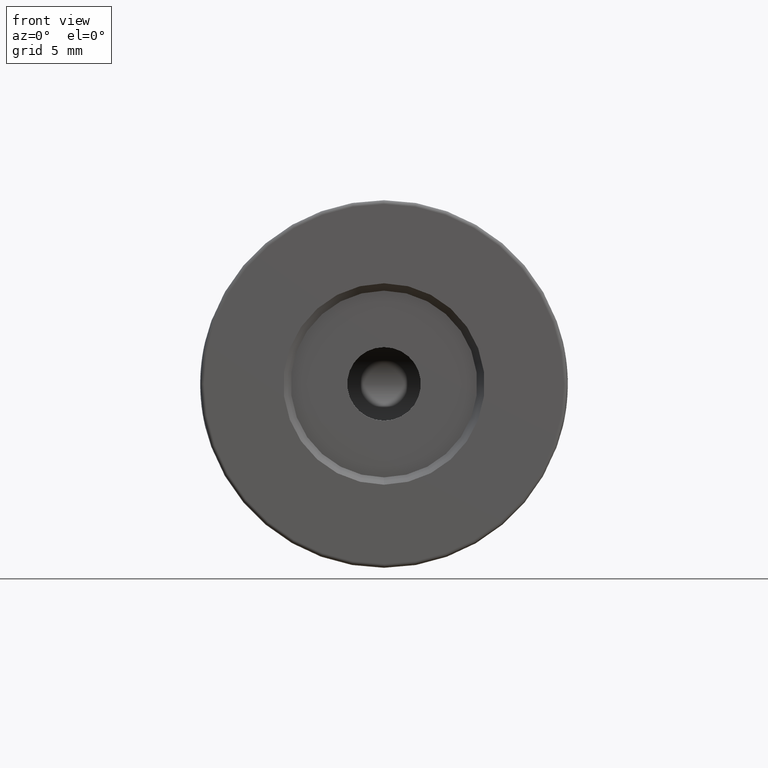
[diagram: clean part render]
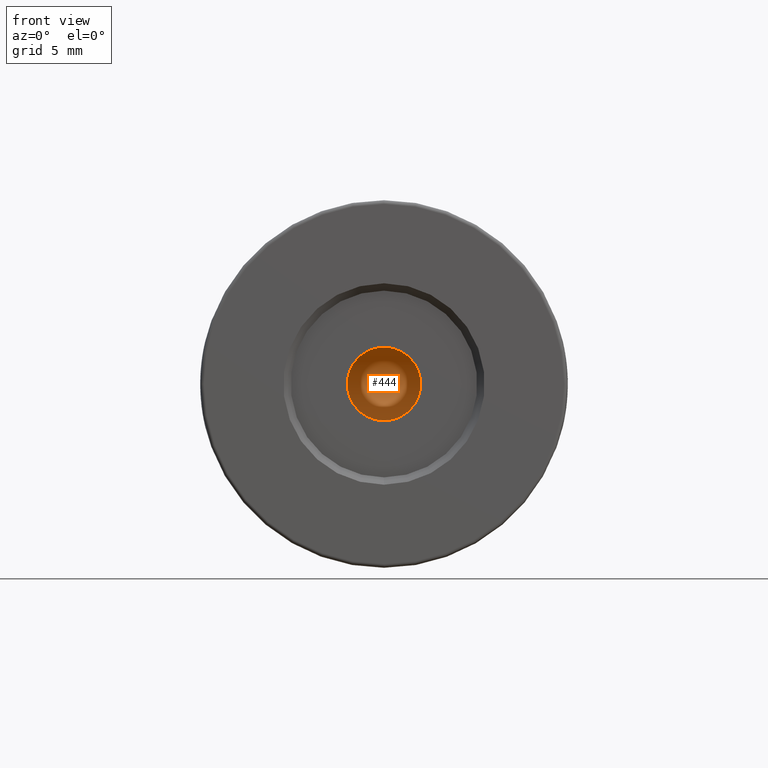
[diagram: same view with one face highlighted and labeled with its STEP entity id]
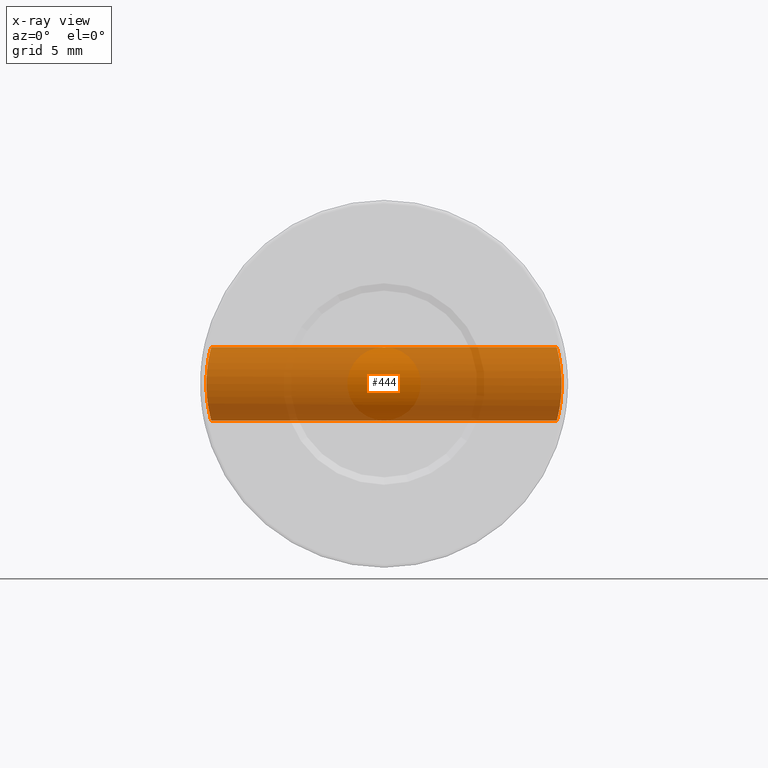
[diagram: x-ray of the same camera — body ghosted, the highlighted face saturated]
A machine part, front view. The second image highlights one B-rep face of the part: STEP entity #444.
The next image is the same camera in x-ray: the body ghosted, the highlighted face saturated — about 84% of this face is hidden behind the body in this view.
In plain terms, the highlighted cylindrical surface (partial cylindrical patch) has radius 2.5 mm, axis along (1, -0, -0).
Its self-contained STEP definition (entity closure, byte-faithful):
#1 = CARTESIAN_POINT ( 'NONE',  ( -10.62159523113176363, -0.1968808583162673653, 48.07498591642143282 ) ) ;
#2 = CARTESIAN_POINT ( 'NONE',  ( -34.46180608895006259, -0.5818729988150558308, 51.52640824506183037 ) ) ;
#18 = CARTESIAN_POINT ( 'NONE',  ( -10.67858783943564305, 0.1833180170229181116, 47.81497774255150546 ) ) ;
#19 = CARTESIAN_POINT ( 'NONE',  ( -34.48401816584312485, -0.6852538559191950762, 51.38169719037629335 ) ) ;
#38 = CARTESIAN_POINT ( 'NONE',  ( -10.64232181268587674, -0.06986180922436015239, 47.97637558953262271 ) ) ;
#39 = CARTESIAN_POINT ( 'NONE',  ( -34.50716656985768083, -0.7881284129226078239, 51.21293915897651772 ) ) ;
#56 = VERTEX_POINT ( 'NONE', #2630 ) ;
#58 = CARTESIAN_POINT ( 'NONE',  ( -34.55953902162276137, -1.005153659604419270, 50.68936837208522661 ) ) ;
#73 = CARTESIAN_POINT ( 'NONE',  ( -34.28602672658875150, 0.5950355728038800862, 52.37347955788921183 ) ) ;
#92 = CARTESIAN_POINT ( 'NONE',  ( -10.74274117493625091, 0.8684932594145711171, 52.44355759701232955 ) ) ;
#101 = CARTESIAN_POINT ( 'NONE',  ( -10.57773180386043066, -0.4376908258263546569, 48.30298648008197659 ) ) ;
#103 = VERTEX_POINT ( 'NONE', #1882 ) ;
#108 = CARTESIAN_POINT ( 'NONE',  ( -10.67397712752309857, 0.1479697807137531074, 52.16528279557555692 ) ) ;
#118 = CARTESIAN_POINT ( 'NONE',  ( -10.58234760790217877, -0.4137576542944788049, 48.27757271579589826 ) ) ;
#149 = ORIENTED_EDGE ( 'NONE', *, *, #2620, .T. ) ;
#173 = CARTESIAN_POINT ( 'NONE',  ( -10.62583528341421335, -0.1716875949890521169, 51.94559000068362309 ) ) ;
#174 = CARTESIAN_POINT ( 'NONE',  ( -34.45088966696442156, -0.5289798279518589386, 48.40758319721046377 ) ) ;
#182 = EDGE_CURVE ( 'NONE', #1409, #2243, #551, .T. ) ;
#190 = CARTESIAN_POINT ( 'NONE',  ( -10.42604825907036137, -1.101714980132666444, 49.91792093702063227 ) ) ;
#191 = CARTESIAN_POINT ( 'NONE',  ( -34.42649553502507587, -0.4059594383566594855, 48.26863308257303231 ) ) ;
#207 = CARTESIAN_POINT ( 'NONE',  ( -10.56031926645037622, -0.5250308565864675314, 51.59718396470118051 ) ) ;
#208 = CARTESIAN_POINT ( 'NONE',  ( -34.53415704703492395, -0.9023810259828971558, 49.02146608222509627 ) ) ;
#225 = CARTESIAN_POINT ( 'NONE',  ( -10.49456390203182110, -0.8254235332937839287, 48.85732724738778643 ) ) ;
#226 = CARTESIAN_POINT ( 'NONE',  ( -34.41225743643844481, -0.3296779907819702427, 48.19311185141841491 ) ) ;
#245 = CARTESIAN_POINT ( 'NONE',  ( -10.50331884686101169, -0.7877254888209659356, 51.21321714994044783 ) ) ;
#246 = CARTESIAN_POINT ( 'NONE',  ( -34.53237663778121913, -0.8950104628119405215, 49.00433359288258828 ) ) ;
#263 = CARTESIAN_POINT ( 'NONE',  ( -10.54864018140512272, -0.5816680154573729000, 48.47333049443028585 ) ) ;
#264 = CARTESIAN_POINT ( 'NONE',  ( -34.39865427624107497, -0.2538691972577701295, 51.87630079081840506 ) ) ;
#280 = CARTESIAN_POINT ( 'NONE',  ( -10.71610056787917564, 0.5169422706546876745, 47.66013366162549403 ) ) ;
#281 = CARTESIAN_POINT ( 'NONE',  ( -34.45235365778886916, -0.5361417108541568499, 51.58370875816678591 ) ) ;
#300 = CARTESIAN_POINT ( 'NONE',  ( -10.52659986134875147, -0.6842789163474527481, 48.61683424880515503 ) ) ;
#301 = CARTESIAN_POINT ( 'NONE',  ( -34.35844637509133292, -0.006921562649152083677, 52.06774620977071777 ) ) ;
#320 = CARTESIAN_POINT ( 'NONE',  ( -10.55563654013720587, -0.5478977700872590395, 48.43075464459153778 ) ) ;
#321 = CARTESIAN_POINT ( 'NONE',  ( -34.33170421931531990, 0.1841765981154536158, 52.18549987223105546 ) ) ;
#338 = CARTESIAN_POINT ( 'NONE',  ( -34.56758620653591407, -1.036867936829209746, 50.56735310513084158 ) ) ;
#383 = CARTESIAN_POINT ( 'NONE',  ( -10.60970156000155917, -0.2654886933591443787, 48.13398014680061721 ) ) ;
#389 = CARTESIAN_POINT ( 'NONE',  ( -10.63294623930574900, -0.1287006704112836353, 51.97970505910436856 ) ) ;
#409 = CARTESIAN_POINT ( 'NONE',  ( -10.72622720231127325, 0.6314631381762972895, 52.37983731697176637 ) ) ;
#410 = CARTESIAN_POINT ( 'NONE',  ( -34.25265048614458152, 1.317191779406497121, 47.50000000000000000 ) ) ;
#427 = CARTESIAN_POINT ( 'NONE',  ( -10.71592032879144796, 0.5156644170198241284, 52.33911789078246812 ) ) ;
#442 = CARTESIAN_POINT ( 'NONE',  ( -34.36065912378236931, -0.02189760885076475275, 47.94221740962712630 ) ) ;
#444 = ADVANCED_FACE ( 'NONE', ( #3322 ), #1985, .F. ) ;
#456 = CARTESIAN_POINT ( 'NONE',  ( -10.43018898294854147, -1.086043810321795089, 50.32543852508524651 ) ) ;
#457 = CARTESIAN_POINT ( 'NONE',  ( -34.56747093977340057, -1.036417866412739919, 49.43074854711915833 ) ) ;
#474 = CARTESIAN_POINT ( 'NONE',  ( -10.42710243056527375, -1.097735351428669182, 49.83632547966586657 ) ) ;
#475 = CARTESIAN_POINT ( 'NONE',  ( -34.51574154471718714, -0.8250691337413179616, 48.85603395560453066 ) ) ;
#490 = CARTESIAN_POINT ( 'NONE',  ( -10.48373458051032792, -0.8713286182909774080, 48.95026334256161960 ) ) ;
#491 = CARTESIAN_POINT ( 'NONE',  ( -34.38650796547503319, -0.1832489827854534847, 48.06380219130608822 ) ) ;
#499 = ORIENTED_EDGE ( 'NONE', *, *, #2661, .T. ) ;
#510 = CARTESIAN_POINT ( 'NONE',  ( -10.47238800387144408, -0.9182809379658727345, 49.05975502743002892 ) ) ;
#511 = CARTESIAN_POINT ( 'NONE',  ( -34.50233437376970613, -0.7670108864525113646, 48.75018965329959286 ) ) ;
#529 = CARTESIAN_POINT ( 'NONE',  ( -10.55249967033364378, -0.5632656986772527352, 51.55062747424837966 ) ) ;
#530 = CARTESIAN_POINT ( 'NONE',  ( -34.51348870992945450, -0.8153565648238506602, 51.16202697217401862 ) ) ;
#546 = CARTESIAN_POINT ( 'NONE',  ( -10.55800996917534462, -0.5363372430205892716, 48.41653009995997081 ) ) ;
#547 = CARTESIAN_POINT ( 'NONE',  ( -34.54002586174048162, -0.9265255133415598587, 50.91969437421626310 ) ) ;
#551 = LINE ( 'NONE', #2958, #3454 ) ;
#565 = CARTESIAN_POINT ( 'NONE',  ( -10.53696138725975828, -0.6367714060218671035, 48.54730203812864886 ) ) ;
#566 = CARTESIAN_POINT ( 'NONE',  ( -34.36433900642598616, -0.04581549949828397222, 52.04091040488672348 ) ) ;
#570 = DIRECTION ( 'NONE',  ( 1.000000000000000000, -0.0000000000000000000, -0.0000000000000000000 ) ) ;
#584 = CARTESIAN_POINT ( 'NONE',  ( -10.69439968394438800, 0.3107931542056360241, 47.74825504812926624 ) ) ;
#585 = CARTESIAN_POINT ( 'NONE',  ( -34.35081851356338234, 0.04444782519338460330, 52.10216400116996738 ) ) ;
#587 = EDGE_CURVE ( 'NONE', #103, #2823, #1201, .T. ) ;
#594 = CARTESIAN_POINT ( 'NONE',  ( -34.25372608117672257, 1.235573217407851976, 47.50394556698368120 ) ) ;
#602 = CARTESIAN_POINT ( 'NONE',  ( -34.45689946489310529, -0.5582448629675769158, 51.55638464945538146 ) ) ;
#610 = CARTESIAN_POINT ( 'NONE',  ( -34.30563352355968476, 0.4043161048834505999, 47.70574000960827732 ) ) ;
#621 = B_SPLINE_CURVE_WITH_KNOTS ( 'NONE', 3,
 ( #709, #2833, #1199, #2554, #1968, #3022, #2797, #92, #2815, #637, #3076, #409, #2504, #427, #2002, #1216, #1480, #1498, #3355, #3056, #2232, #2537, #108, #1461, #1704, #3039, #3338, #1183, #1984, #656, #1722, #389, #1558, #173, #1249, #724, #793, #2332, #1807, #2349, #755, #1790, #1527, #1058, #740, #1859, #2865, #1040, #207, #2916, #3386, #529, #2314, #2124, #3156, #2586, #2571, #775, #3403, #3369, #3177, #987, #245, #3441, #1843, #3422, #1319, #2053, #2847, #3108, #2106, #456, #2899, #190, #474, #1543, #2882, #1264, #2604, #1006, #1822, #2071, #1022, #3124, #2384, #1283, #2086, #510, #3139, #490, #2621, #225, #1300, #2364, #1577, #2638, #1977, #3296, #2140, #300, #1338, #565, #2655, #263, #3050, #320, #2514, #546, #2178, #1895, #1630, #101, #118, #930, #1995, #912, #1595, #850, #383, #1375, #1876, #1714, #1193, #2436, #2400, #2952, #1, #2691, #1074, #38, #2971, #3194, #2417, #1915, #1612, #2710, #813, #2259, #18, #1114, #3232, #584, #1651, #2934, #2673, #1454, #280, #2772, #1354, #649, #1092, #2158, #1175, #1394, #3212, #832 ),
 .UNSPECIFIED., .F., .F.,
 ( 4, 2, 2, 2, 2, 2, 1, 2, 2, 1, 2, 2, 2, 1, 2, 2, 2, 1, 1, 2, 2, 2, 2, 2, 2, 2, 1, 2, 2, 2, 1, 2, 2, 2, 2, 2, 1, 2, 2, 2, 2, 2, 2, 2, 2, 2, 1, 2, 2, 1, 2, 2, 2, 1, 2, 2, 2, 1, 1, 2, 2, 2, 2, 2, 2, 2, 2, 2, 1, 2, 2, 2, 1, 2, 2, 2, 2, 2, 1, 2, 2, 2, 2, 2, 2, 4 ),
 ( 0.5001617398552814509, 0.5157816854848015220, 0.5235916582995615576, 0.5314016311143215932, 0.5392116039290816287, 0.5470215767438416643, 0.5548315495586016999, 0.5587365359659817177, 0.5626415223733618465, 0.5704514951881224372, 0.5743564815955026770, 0.5782614680028830279, 0.5860714408176437296, 0.5899764272250239694, 0.5919289204287144779, 0.5938814136324049864, 0.6016913864471662432, 0.6055963728545472602, 0.6075488660582377687, 0.6085251126600833560, 0.6095013592619289433, 0.6173113320766927536, 0.6212163184840746588, 0.6251213048914565640, 0.6329312777062211515, 0.6368362641136029456, 0.6387887573172933431, 0.6397650039191384863, 0.6407412505209837406, 0.6485512233357457745, 0.6524562097431263474, 0.6544087029468166339, 0.6563611961505068093, 0.6641711689652678441, 0.6680761553726488611, 0.6719811417800299891, 0.6797911145947910239, 0.6836961010021708196, 0.6876010874095508374, 0.7188409786685852065, 0.7500808699276197977, 0.7657008155571369823, 0.7735107883718956856, 0.7813207611866543889, 0.7891307340014130922, 0.7969407068161715735, 0.8047506796309302768, 0.8086556660383095174, 0.8125606524456888691, 0.8203706252604487936, 0.8242756116678287004, 0.8281805980752086072, 0.8359905708899670884, 0.8398955572973464401, 0.8418480505010361714, 0.8438005437047257917, 0.8516105165194856053, 0.8555155029268657341, 0.8574679961305561315, 0.8584442427324014968, 0.8594204893342466400, 0.8672304621490041221, 0.8711354485563829186, 0.8730879417600723169, 0.8750404349637617152, 0.8828504077785199744, 0.8848029009822102608, 0.8857791475840555151, 0.8867553941859006583, 0.8887078873895917219, 0.8906603805932830076, 0.8984703534080493714, 0.9023753398154324978, 0.9043278330191240055, 0.9062803262228156242, 0.9140902990375818771, 0.9179952854449651145, 0.9219002718523481299, 0.9297102446671139386, 0.9336152310744965099, 0.9375202174818789702, 0.9453301902966441128, 0.9531401631114091444, 0.9609501359261742870, 0.9687601087409394296, 1.000000000000000000 ),
 .UNSPECIFIED. ) ;
#637 = CARTESIAN_POINT ( 'NONE',  ( -10.73519474087071224, 0.7493470907608199560, 52.41466407441102859 ) ) ;
#638 = DIRECTION ( 'NONE',  ( 0.0000000000000000000, 0.0000000000000000000, -1.000000000000000000 ) ) ;
#649 = CARTESIAN_POINT ( 'NONE',  ( -10.73240326151844570, 0.7104556607155707582, 47.59611550456553175 ) ) ;
#656 = CARTESIAN_POINT ( 'NONE',  ( -10.64475702032164683, -0.05449199713574787857, 52.03499243849228861 ) ) ;
#691 = CARTESIAN_POINT ( 'NONE',  ( -34.29800687137930026, 0.4791906237897281540, 47.67497262554034165 ) ) ;
#692 = CARTESIAN_POINT ( 'NONE',  ( -35.00520183104453764, 1.398252184769388506, 50.00000000000000000 ) ) ;
#709 = CARTESIAN_POINT ( 'NONE',  ( -10.75775312123388971, 1.398252184769395834, 52.49999999860907707 ) ) ;
#710 = CARTESIAN_POINT ( 'NONE',  ( -34.47086386077138087, -0.6246421137252532452, 48.53088012368283444 ) ) ;
#724 = CARTESIAN_POINT ( 'NONE',  ( -10.62344330914431012, -0.1859351135221645468, 51.93400119752804756 ) ) ;
#725 = CARTESIAN_POINT ( 'NONE',  ( -34.58332565315850360, -1.097829955506911759, 50.16206928806301590 ) ) ;
#740 = CARTESIAN_POINT ( 'NONE',  ( -10.56932247538671454, -0.4803972759497946443, 51.64957173094261833 ) ) ;
#741 = CARTESIAN_POINT ( 'NONE',  ( -34.44330006835453872, -0.4914919942546380760, 48.36318210990521038 ) ) ;
#755 = CARTESIAN_POINT ( 'NONE',  ( -10.59768553201881147, -0.3321902539839899360, 51.80448705950021093 ) ) ;
#756 = CARTESIAN_POINT ( 'NONE',  ( -34.48044836708265848, -0.6689643209632546439, 48.59404682438723455 ) ) ;
#775 = CARTESIAN_POINT ( 'NONE',  ( -10.52885508855513663, -0.6739989469219954676, 51.39853227016924109 ) ) ;
#776 = CARTESIAN_POINT ( 'NONE',  ( -34.57917339465431894, -1.081894588688637970, 50.32490689011670071 ) ) ;
#793 = CARTESIAN_POINT ( 'NONE',  ( -10.61972372439687362, -0.2079601786138379482, 51.91591326594845413 ) ) ;
#794 = CARTESIAN_POINT ( 'NONE',  ( -34.49555993423459199, -0.7371358814296029571, 51.30020623651645906 ) ) ;
#813 = CARTESIAN_POINT ( 'NONE',  ( -10.67175156277595072, 0.1317791047682938255, 47.84443531904258862 ) ) ;
#814 = CARTESIAN_POINT ( 'NONE',  ( -34.47841176954435838, -0.6597039480360201713, 51.41991877060663541 ) ) ;
#832 = CARTESIAN_POINT ( 'NONE',  ( -10.75775311712864735, 1.398252184769388506, 47.50000000000000000 ) ) ;
#833 = CARTESIAN_POINT ( 'NONE',  ( -34.57597065877341436, -1.069532232669696326, 50.40818179678795730 ) ) ;
#850 = CARTESIAN_POINT ( 'NONE',  ( -10.60442211734673457, -0.2952135887468981257, 48.16065378262511132 ) ) ;
#851 = CARTESIAN_POINT ( 'NONE',  ( -34.33622545324850250, 0.1498362926352976021, 52.16606716929506860 ) ) ;
#860 = CARTESIAN_POINT ( 'NONE',  ( -34.25265054498070327, 1.398252184769378959, 47.49999999999540989 ) ) ;
#866 = VECTOR ( 'NONE', #2762, 1000.000000000000000 ) ;
#870 = CARTESIAN_POINT ( 'NONE',  ( -34.31595423361484620, 0.3112339593927870851, 52.25194986132313346 ) ) ;
#886 = CARTESIAN_POINT ( 'NONE',  ( -34.27403437959145549, 0.7470135017642817177, 52.41939231723549852 ) ) ;
#912 = CARTESIAN_POINT ( 'NONE',  ( -10.58870654711280501, -0.3803608510138715704, 48.24308501951851724 ) ) ;
#919 = CARTESIAN_POINT ( 'NONE',  ( -10.75775312123388971, 1.398252184769395834, 52.49999999860907707 ) ) ;
#930 = CARTESIAN_POINT ( 'NONE',  ( -10.58393590299981568, -0.4054708077846081449, 48.26889160422712877 ) ) ;
#957 = CARTESIAN_POINT ( 'NONE',  ( -34.26763340207761388, 0.8690186579489039831, 47.55632946927438098 ) ) ;
#971 = CARTESIAN_POINT ( 'NONE',  ( -34.25265054498070327, 1.398252184769378959, 47.49999999999540989 ) ) ;
#987 = CARTESIAN_POINT ( 'NONE',  ( -10.50780244122388929, -0.7681796818577127928, 51.24778492121350126 ) ) ;
#988 = CARTESIAN_POINT ( 'NONE',  ( -34.58436371778456220, -1.101747815230613714, 49.83753810370577497 ) ) ;
#1006 = CARTESIAN_POINT ( 'NONE',  ( -10.44066708810784405, -1.045268519329392465, 49.47006957765543689 ) ) ;
#1007 = CARTESIAN_POINT ( 'NONE',  ( -34.35511391788870128, 0.01548280108123433613, 47.91720626426130991 ) ) ;
#1022 = CARTESIAN_POINT ( 'NONE',  ( -10.45095694804015096, -1.004789451108452747, 49.30937450547701673 ) ) ;
#1023 = CARTESIAN_POINT ( 'NONE',  ( -34.48138769154141414, -0.6732635636608648166, 48.60037921174513542 ) ) ;
#1040 = CARTESIAN_POINT ( 'NONE',  ( -10.56183111278837217, -0.5176069660078431722, 51.60611082409621986 ) ) ;
#1041 = CARTESIAN_POINT ( 'NONE',  ( -34.34705827748303619, 0.07100138798370368709, 47.88122892111255879 ) ) ;
#1058 = CARTESIAN_POINT ( 'NONE',  ( -10.57732511995014946, -0.4399142557310912194, 51.69492976378364801 ) ) ;
#1059 = CARTESIAN_POINT ( 'NONE',  ( -34.40082131574115465, -0.2661626669478704965, 51.86541833316356076 ) ) ;
#1074 = CARTESIAN_POINT ( 'NONE',  ( -10.63454691679634578, -0.1190031699292755096, 48.01264145040787668 ) ) ;
#1075 = CARTESIAN_POINT ( 'NONE',  ( -34.51594362384955872, -0.8258666276651617233, 51.14180818670956086 ) ) ;
#1092 = CARTESIAN_POINT ( 'NONE',  ( -10.73524935634624455, 0.7501397676350676225, 47.58512630799970822 ) ) ;
#1093 = CARTESIAN_POINT ( 'NONE',  ( -34.48550909626646188, -0.6920244124106107453, 51.37144371164546186 ) ) ;
#1114 = CARTESIAN_POINT ( 'NONE',  ( -10.68052348044563082, 0.1982792118610490761, 47.80671014584392253 ) ) ;
#1115 = CARTESIAN_POINT ( 'NONE',  ( -34.52032622242564486, -0.8445100356048756973, 51.10473890577102196 ) ) ;
#1132 = CARTESIAN_POINT ( 'NONE',  ( -34.32265489828677119, 0.2554984144396964529, 52.22394071949661765 ) ) ;
#1148 = CARTESIAN_POINT ( 'NONE',  ( -34.25692942768890958, 1.072705232127493025, 52.48426854195874824 ) ) ;
#1175 = CARTESIAN_POINT ( 'NONE',  ( -10.74267190343696043, 0.8671768546495380869, 47.55670384601889822 ) ) ;
#1183 = CARTESIAN_POINT ( 'NONE',  ( -10.65514354455450885, 0.01449203186619087667, 52.08213575337613577 ) ) ;
#1193 = CARTESIAN_POINT ( 'NONE',  ( -10.61375476849908317, -0.2424175756126970005, 48.11367224359497641 ) ) ;
#1199 = CARTESIAN_POINT ( 'NONE',  ( -10.75667521398798065, 1.235421006823659296, 52.49604762626784549 ) ) ;
#1200 = CARTESIAN_POINT ( 'NONE',  ( -34.28408417306183509, 0.6325990093843253392, 47.61980232292838622 ) ) ;
#1201 = LINE ( 'NONE', #2779, #866 ) ;
#1216 = CARTESIAN_POINT ( 'NONE',  ( -10.71009666006385430, 0.4561568447529769088, 52.31578128150203355 ) ) ;
#1217 = CARTESIAN_POINT ( 'NONE',  ( -34.26348267496746303, 0.9478053007554890774, 47.54058718525541849 ) ) ;
#1249 = CARTESIAN_POINT ( 'NONE',  ( -10.62437748581633379, -0.1803884314582000492, 51.93853686259114966 ) ) ;
#1250 = CARTESIAN_POINT ( 'NONE',  ( -34.44080632493822236, -0.4790193692568095463, 48.34885748903716518 ) ) ;
#1264 = CARTESIAN_POINT ( 'NONE',  ( -10.43471003864932989, -1.068430130424115942, 49.59111660102172436 ) ) ;
#1265 = CARTESIAN_POINT ( 'NONE',  ( -34.33611078084065582, 0.1503272233652955536, 47.83335261608824851 ) ) ;
#1283 = CARTESIAN_POINT ( 'NONE',  ( -10.46675418761888210, -0.9413161042137381251, 49.11861145019425834 ) ) ;
#1284 = CARTESIAN_POINT ( 'NONE',  ( -34.54002772576265556, -0.9265728093634830742, 49.07969790760635220 ) ) ;
#1300 = CARTESIAN_POINT ( 'NONE',  ( -10.49703592662607221, -0.8148377673072904059, 48.83698465690869739 ) ) ;
#1301 = CARTESIAN_POINT ( 'NONE',  ( -34.48795404596005909, -0.7031998793840928963, 48.64510045663127613 ) ) ;
#1319 = CARTESIAN_POINT ( 'NONE',  ( -10.48170455071265472, -0.8797127351580459331, 51.03018400398766374 ) ) ;
#1320 = CARTESIAN_POINT ( 'NONE',  ( -34.44989863870507918, -0.5241191198567732856, 48.40171871317532748 ) ) ;
#1338 = CARTESIAN_POINT ( 'NONE',  ( -10.53216740897180692, -0.6588951868629280284, 48.57891688851639600 ) ) ;
#1339 = CARTESIAN_POINT ( 'NONE',  ( -34.56987545375614701, -1.045809881134129427, 50.52745018301020252 ) ) ;
#1354 = CARTESIAN_POINT ( 'NONE',  ( -10.72619458734259013, 0.6309908818969653943, 47.62028682001269431 ) ) ;
#1355 = CARTESIAN_POINT ( 'NONE',  ( -34.43263066567408259, -0.4374791448352107759, 51.69724255881399699 ) ) ;
#1375 = CARTESIAN_POINT ( 'NONE',  ( -10.61064650972083001, -0.2601381413485561733, 48.12922970440698123 ) ) ;
#1376 = CARTESIAN_POINT ( 'NONE',  ( -34.42163468960241346, -0.3800297845475701930, 51.75724919839603189 ) ) ;
#1388 = CARTESIAN_POINT ( 'NONE',  ( -10.75775311712864735, 1.398252184769388506, 47.50000000000000000 ) ) ;
#1394 = CARTESIAN_POINT ( 'NONE',  ( -10.75344419893102632, 1.071524213025596639, 47.51584169795628299 ) ) ;
#1395 = CARTESIAN_POINT ( 'NONE',  ( -34.39988808703810719, -0.2608806378411337445, 51.87011153443979339 ) ) ;
#1403 = CARTESIAN_POINT ( 'NONE',  ( -34.25695295455719958, 1.112906428231886347, 47.51599801852401583 ) ) ;
#1409 = VERTEX_POINT ( 'NONE', #971 ) ;
#1411 = CARTESIAN_POINT ( 'NONE',  ( -34.43550956289714549, -0.4522026044746847995, 51.68113994059915939 ) ) ;
#1454 = CARTESIAN_POINT ( 'NONE',  ( -10.71235439384134480, 0.4781380950031267618, 47.67509863884822607 ) ) ;
#1461 = CARTESIAN_POINT ( 'NONE',  ( -10.66678853302373398, 0.09561727201219219485, 52.13390632473469566 ) ) ;
#1480 = CARTESIAN_POINT ( 'NONE',  ( -10.70449112277458248, 0.4016970245442622600, 52.29312540136203324 ) ) ;
#1498 = CARTESIAN_POINT ( 'NONE',  ( -10.69849887821412260, 0.3465721218100823453, 52.26868595215763946 ) ) ;
#1514 = CARTESIAN_POINT ( 'NONE',  ( -34.37321774597252499, -0.1023266511175646432, 48.00033112858268680 ) ) ;
#1527 = CARTESIAN_POINT ( 'NONE',  ( -10.58346237395098477, -0.4082778326454583606, 51.72892613121193506 ) ) ;
#1528 = CARTESIAN_POINT ( 'NONE',  ( -34.52845201512801765, -0.8786810074041245811, 48.96753673022602271 ) ) ;
#1543 = CARTESIAN_POINT ( 'NONE',  ( -10.43025254437209703, -1.085644778690259660, 49.71374546766625713 ) ) ;
#1544 = CARTESIAN_POINT ( 'NONE',  ( -34.52237776065797448, -0.8532812732193804095, 48.91209882768374939 ) ) ;
#1558 = CARTESIAN_POINT ( 'NONE',  ( -10.62800475089833263, -0.1586852750479571805, 51.95605736551608800 ) ) ;
#1559 = CARTESIAN_POINT ( 'NONE',  ( -34.55357667332192761, -0.9813988309537613475, 49.23254846258252115 ) ) ;
#1574 = CARTESIAN_POINT ( 'NONE',  ( -34.25265217549185337, 1.236269165593523178, 52.50000000000000711 ) ) ;
#1577 = CARTESIAN_POINT ( 'NONE',  ( -10.50786879652206984, -0.7679670883880344023, 48.75133047365985561 ) ) ;
#1578 = CARTESIAN_POINT ( 'NONE',  ( -34.38577565378218281, -0.1788920693370853188, 48.06025158870866676 ) ) ;
#1595 = CARTESIAN_POINT ( 'NONE',  ( -10.59842354223565764, -0.3285848295785773754, 48.19128023147527529 ) ) ;
#1596 = CARTESIAN_POINT ( 'NONE',  ( -34.41198757836093591, -0.3286182131961329356, 51.80867430766598858 ) ) ;
#1612 = CARTESIAN_POINT ( 'NONE',  ( -10.65951608119999072, 0.04397262650258525890, 47.89814453424574481 ) ) ;
#1613 = CARTESIAN_POINT ( 'NONE',  ( -34.47358128225556584, -0.6374202605787688825, 51.45179814202610658 ) ) ;
#1630 = CARTESIAN_POINT ( 'NONE',  ( -10.57485337616749810, -0.4524102370142228935, 48.31908865571285361 ) ) ;
#1631 = CARTESIAN_POINT ( 'NONE',  ( -34.36077538717432134, -0.02236865110985488195, 52.05716408901214010 ) ) ;
#1651 = CARTESIAN_POINT ( 'NONE',  ( -10.70057055069113616, 0.3661159422536898189, 47.72291907336315120 ) ) ;
#1652 = CARTESIAN_POINT ( 'NONE',  ( -34.39003097981775170, -0.2040613252166126046, 51.91903397197344106 ) ) ;
#1668 = CARTESIAN_POINT ( 'NONE',  ( -34.42314861018284944, -0.3880299837861833634, 51.74909947996737714 ) ) ;
#1677 = CARTESIAN_POINT ( 'NONE',  ( -34.31159673122395759, 0.3493163015143447292, 47.73004764885509132 ) ) ;
#1704 = CARTESIAN_POINT ( 'NONE',  ( -10.66309147314571426, 0.06921372925078417282, 52.11764764604753708 ) ) ;
#1714 = CARTESIAN_POINT ( 'NONE',  ( -10.61231992382937506, -0.2506214636249038397, 48.12083918760337298 ) ) ;
#1722 = CARTESIAN_POINT ( 'NONE',  ( -10.63697505384543618, -0.1036455912773760757, 51.99867907403884004 ) ) ;
#1760 = CARTESIAN_POINT ( 'NONE',  ( -34.32262663300149086, 0.2561880020948804071, 47.77601120064381490 ) ) ;
#1776 = CARTESIAN_POINT ( 'NONE',  ( -34.33157020776420154, 0.1848587071711889351, 47.81387465578455931 ) ) ;
#1790 = CARTESIAN_POINT ( 'NONE',  ( -10.59387149139005757, -0.3528523106184301983, 51.78446549812111499 ) ) ;
#1791 = CARTESIAN_POINT ( 'NONE',  ( -34.34333947315268176, 0.09759829470787059758, 47.86488434572161310 ) ) ;
#1807 = CARTESIAN_POINT ( 'NONE',  ( -10.60718500976704171, -0.2796514536796509964, 51.85339265559438360 ) ) ;
#1808 = CARTESIAN_POINT ( 'NONE',  ( -34.45111437474876936, -0.5300818197651804287, 48.40891250346156482 ) ) ;
#1822 = CARTESIAN_POINT ( 'NONE',  ( -10.44294982557472196, -1.036351153594448515, 49.43045362237479878 ) ) ;
#1823 = CARTESIAN_POINT ( 'NONE',  ( -34.50003614695346954, -0.7569234433312890253, 48.73286471900372874 ) ) ;
#1843 = CARTESIAN_POINT ( 'NONE',  ( -10.49436252010375448, -0.8263483254533307010, 51.14147247849709288 ) ) ;
#1844 = CARTESIAN_POINT ( 'NONE',  ( -34.47459360791594207, -0.6420274704839967761, 48.55504079422336616 ) ) ;
#1859 = CARTESIAN_POINT ( 'NONE',  ( -10.56685546660520814, -0.4927281287576286695, 51.63538786508971157 ) ) ;
#1860 = CARTESIAN_POINT ( 'NONE',  ( -34.42642532567511893, -0.4052489239106836227, 51.73133957602532718 ) ) ;
#1876 = CARTESIAN_POINT ( 'NONE',  ( -10.61189752608217773, -0.2530256318064685872, 48.12295669585297020 ) ) ;
#1877 = CARTESIAN_POINT ( 'NONE',  ( -34.56249268766642047, -1.016837435980150417, 50.64733428478941590 ) ) ;
#1882 = CARTESIAN_POINT ( 'NONE',  ( -34.25265052839080937, 1.398252184769063433, 52.50000002275201183 ) ) ;
#1895 = CARTESIAN_POINT ( 'NONE',  ( -10.56681441809337585, -0.4930984355253440476, 48.36462535847849153 ) ) ;
#1896 = CARTESIAN_POINT ( 'NONE',  ( -34.53254672174834639, -0.8957462109476911349, 50.99453643552347870 ) ) ;
#1915 = CARTESIAN_POINT ( 'NONE',  ( -10.65285238118403477, -0.0009475333843241167710, 47.92819957675158093 ) ) ;
#1916 = CARTESIAN_POINT ( 'NONE',  ( -34.38899210786939875, -0.1979629009021533770, 51.92411746700024366 ) ) ;
#1933 = CARTESIAN_POINT ( 'NONE',  ( -34.39265141552495919, -0.2193597808500361290, 51.90615621042891092 ) ) ;
#1950 = CARTESIAN_POINT ( 'NONE',  ( -34.30408236987690174, 0.4194607100791829524, 52.30052462114003475 ) ) ;
#1957 = AXIS2_PLACEMENT_3D ( 'NONE', #692, #2267, #638 ) ;
#1968 = CARTESIAN_POINT ( 'NONE',  ( -10.75209340271500302, 1.071636353598597990, 52.47891861098512578 ) ) ;
#1977 = CARTESIAN_POINT ( 'NONE',  ( -10.51868758877166776, -0.7200257151351450169, 48.67196310145165938 ) ) ;
#1984 = CARTESIAN_POINT ( 'NONE',  ( -10.64957744783489701, -0.02300115478104113736, 52.05702266511933374 ) ) ;
#1985 = CYLINDRICAL_SURFACE ( 'NONE', #1957, 2.500000000000002220 ) ;
#1995 = CARTESIAN_POINT ( 'NONE',  ( -10.58721188069587171, -0.3882578060680673682, 48.25113323422816336 ) ) ;
#2002 = CARTESIAN_POINT ( 'NONE',  ( -10.71216316139429736, 0.4768201537402088075, 52.32409050747882162 ) ) ;
#2021 = CARTESIAN_POINT ( 'NONE',  ( -34.27515761366436919, 0.7500930228599904659, 47.58513699398487518 ) ) ;
#2038 = CARTESIAN_POINT ( 'NONE',  ( -34.49294447753400306, -0.7255657383932482274, 48.68051045382252795 ) ) ;
#2053 = CARTESIAN_POINT ( 'NONE',  ( -10.47779617321235435, -0.8959676764009806282, 50.99345784364686551 ) ) ;
#2054 = CARTESIAN_POINT ( 'NONE',  ( -34.58436371778454799, -1.101747815230615046, 50.00000000000000000 ) ) ;
#2071 = CARTESIAN_POINT ( 'NONE',  ( -10.44802382936035379, -1.016394345135354538, 49.35103264561511338 ) ) ;
#2072 = CARTESIAN_POINT ( 'NONE',  ( -34.36546234109800935, -0.05330031740045884647, 47.96415985756413392 ) ) ;
#2086 = CARTESIAN_POINT ( 'NONE',  ( -10.47039545447466935, -0.9264528070140454208, 49.08012378239171625 ) ) ;
#2087 = CARTESIAN_POINT ( 'NONE',  ( -34.40289296272172948, -0.2778242766667703423, 48.14495784707257542 ) ) ;
#2106 = CARTESIAN_POINT ( 'NONE',  ( -10.44688409141883234, -1.021078929278363523, 50.65151652736996368 ) ) ;
#2107 = CARTESIAN_POINT ( 'NONE',  ( -34.58436371778454799, -1.101747815230615046, 50.00000000000000000 ) ) ;
#2124 = CARTESIAN_POINT ( 'NONE',  ( -10.53935697225685963, -0.6254966278868707708, 51.46794146038261886 ) ) ;
#2125 = CARTESIAN_POINT ( 'NONE',  ( -34.50268437593395987, -0.7686213966566930456, 51.24753063492765648 ) ) ;
#2140 = CARTESIAN_POINT ( 'NONE',  ( -10.52509590031164066, -0.6911116932289836923, 48.62716597002437879 ) ) ;
#2141 = CARTESIAN_POINT ( 'NONE',  ( -34.55371675179777924, -0.9819582165591885792, 50.76562840243088459 ) ) ;
#2158 = CARTESIAN_POINT ( 'NONE',  ( -10.74042506148159504, 0.8292857282992925905, 47.56526349988942570 ) ) ;
#2159 = CARTESIAN_POINT ( 'NONE',  ( -34.53800786392579880, -0.9182488754518841612, 50.94032211410653588 ) ) ;
#2174 = CARTESIAN_POINT ( 'NONE',  ( -34.25265052839080937, 1.398252184769063433, 52.50000002275201183 ) ) ;
#2178 = CARTESIAN_POINT ( 'NONE',  ( -10.56225021271687581, -0.5156065727790734021, 48.39127750157886254 ) ) ;
#2179 = CARTESIAN_POINT ( 'NONE',  ( -34.35749941449519440, -0.0006002473737055664255, 52.07203507603666992 ) ) ;
#2197 = CARTESIAN_POINT ( 'NONE',  ( -34.39467459845901942, -0.2310918294482322555, 51.89616302054118790 ) ) ;
#2206 = CARTESIAN_POINT ( 'NONE',  ( -34.27816724706748630, 0.7083107737982028418, 47.59676330413721246 ) ) ;
#2215 = CARTESIAN_POINT ( 'NONE',  ( -34.30982150684848619, 0.3662233020935533601, 52.27712853468201359 ) ) ;
#2232 = CARTESIAN_POINT ( 'NONE',  ( -10.68486198365304674, 0.2326005164693776828, 52.21170044161773660 ) ) ;
#2243 = VERTEX_POINT ( 'NONE', #1388 ) ;
#2259 = CARTESIAN_POINT ( 'NONE',  ( -10.67407581826484630, 0.1490699394594851568, 47.83437514432770854 ) ) ;
#2267 = DIRECTION ( 'NONE',  ( 1.000000000000000000, -0.0000000000000000000, -0.0000000000000000000 ) ) ;
#2314 = CARTESIAN_POINT ( 'NONE',  ( -10.54703919518252420, -0.5893708078772856851, 51.51690487191972068 ) ) ;
#2315 = CARTESIAN_POINT ( 'NONE',  ( -34.55052360423466240, -0.9691579968255571442, 49.19560660656475903 ) ) ;
#2332 = CARTESIAN_POINT ( 'NONE',  ( -10.61534918415693696, -0.2334643232501883159, 51.89451868831717007 ) ) ;
#2333 = CARTESIAN_POINT ( 'NONE',  ( -34.35355224952758135, 0.02609830711587956750, 47.91018924373030075 ) ) ;
#2349 = CARTESIAN_POINT ( 'NONE',  ( -10.60419655763207736, -0.2963636030830038570, 51.83817352643973919 ) ) ;
#2350 = CARTESIAN_POINT ( 'NONE',  ( -34.38215854309387254, -0.1572337748543218561, 48.04278849781297112 ) ) ;
#2364 = CARTESIAN_POINT ( 'NONE',  ( -10.50337425847412476, -0.7875330553438648629, 48.78598592219965013 ) ) ;
#2365 = CARTESIAN_POINT ( 'NONE',  ( -34.55963833726764989, -1.005550600650154447, 49.31192079836263531 ) ) ;
#2376 = ORIENTED_EDGE ( 'NONE', *, *, #587, .T. ) ;
#2384 = CARTESIAN_POINT ( 'NONE',  ( -10.46147760231214008, -0.9627523268274964519, 49.17624564877171878 ) ) ;
#2385 = CARTESIAN_POINT ( 'NONE',  ( -34.44673367134045350, -0.5085282891572143749, 48.38313120782030552 ) ) ;
#2400 = CARTESIAN_POINT ( 'NONE',  ( -10.61791199068530389, -0.2184314467934331538, 48.09305609032318074 ) ) ;
#2401 = CARTESIAN_POINT ( 'NONE',  ( -34.39678456562359798, -0.2431949740252352110, 51.88565121881035225 ) ) ;
#2417 = CARTESIAN_POINT ( 'NONE',  ( -10.65192854981717119, -0.007112948269803404458, 47.93238411280541555 ) ) ;
#2418 = CARTESIAN_POINT ( 'NONE',  ( -34.39821049578455359, -0.2513442735117127902, 51.87852623589407841 ) ) ;
#2436 = CARTESIAN_POINT ( 'NONE',  ( -10.61587757313906089, -0.2302350723733300741, 48.10310048819859929 ) ) ;
#2437 = CARTESIAN_POINT ( 'NONE',  ( -34.34574828842203686, 0.08003128975090262331, 52.12460697452650038 ) ) ;
#2457 = CARTESIAN_POINT ( 'NONE',  ( -34.32973418822907519, 0.1994190620373384459, 52.19391175066362365 ) ) ;
#2465 = CARTESIAN_POINT ( 'NONE',  ( -34.26996838981699511, 0.8294527486763796364, 47.56522263061120270 ) ) ;
#2473 = CARTESIAN_POINT ( 'NONE',  ( -34.42801395613759041, -0.4135384967550869151, 51.72265782464959472 ) ) ;
#2504 = CARTESIAN_POINT ( 'NONE',  ( -10.72136315415285068, 0.5738019488451817640, 52.36077209941768018 ) ) ;
#2514 = CARTESIAN_POINT ( 'NONE',  ( -10.55706874358948255, -0.5409305587338300025, 48.42215307473797736 ) ) ;
#2520 = CARTESIAN_POINT ( 'NONE',  ( -34.26152439529791138, 0.9901480680600620587, 47.53318789124093513 ) ) ;
#2537 = CARTESIAN_POINT ( 'NONE',  ( -10.67849549018042588, 0.1822641008500938686, 52.18467929015152151 ) ) ;
#2554 = CARTESIAN_POINT ( 'NONE',  ( -10.75344100360280208, 1.112614096201479663, 52.48396916620082209 ) ) ;
#2571 = CARTESIAN_POINT ( 'NONE',  ( -10.52981318183237569, -0.6696149487509337472, 51.40499581736502677 ) ) ;
#2572 = CARTESIAN_POINT ( 'NONE',  ( -34.50873068779589659, -0.7948591729257910021, 48.79970146556495791 ) ) ;
#2586 = CARTESIAN_POINT ( 'NONE',  ( -10.53211967790708847, -0.6590292879918187019, 51.42045086875268112 ) ) ;
#2587 = CARTESIAN_POINT ( 'NONE',  ( -34.56966959213394119, -1.045008463542664412, 49.46876354832345868 ) ) ;
#2604 = CARTESIAN_POINT ( 'NONE',  ( -10.43661014202597670, -1.061059718646981009, 49.54899595833271775 ) ) ;
#2605 = CARTESIAN_POINT ( 'NONE',  ( -34.37723309313505382, -0.1273193399870731490, 48.01923149293650539 ) ) ;
#2620 = EDGE_CURVE ( 'NONE', #1409, #56, #3281, .T. ) ;
#2621 = CARTESIAN_POINT ( 'NONE',  ( -10.49015723664200550, -0.8441725912015149991, 48.89457436126264156 ) ) ;
#2622 = CARTESIAN_POINT ( 'NONE',  ( -34.35093376907490637, 0.04409749591846551242, 47.89848142058102098 ) ) ;
#2630 = CARTESIAN_POINT ( 'NONE',  ( -34.58436371778454799, -1.101747815230615046, 50.00000000000000000 ) ) ;
#2638 = CARTESIAN_POINT ( 'NONE',  ( -10.51501407881783123, -0.7363793038040763461, 48.69855127287206642 ) ) ;
#2639 = CARTESIAN_POINT ( 'NONE',  ( -34.40583974819959678, -0.2943204202890993271, 48.15994960675770642 ) ) ;
#2655 = CARTESIAN_POINT ( 'NONE',  ( -10.54466226497595116, -0.6005430654720781414, 48.49825746431431384 ) ) ;
#2656 = CARTESIAN_POINT ( 'NONE',  ( -34.46581749594769661, -0.6009040175962199193, 51.50126430585294912 ) ) ;
#2661 = EDGE_CURVE ( 'NONE', #56, #103, #3447, .T. ) ;
#2673 = CARTESIAN_POINT ( 'NONE',  ( -10.70635219089607126, 0.4197558955994680763, 47.69935029146142114 ) ) ;
#2674 = CARTESIAN_POINT ( 'NONE',  ( -34.45474805832017040, -0.5478052659527907764, 51.56936024582302025 ) ) ;
#2691 = CARTESIAN_POINT ( 'NONE',  ( -10.62899526948990925, -0.1530495288940673659, 48.03899991149977922 ) ) ;
#2692 = CARTESIAN_POINT ( 'NONE',  ( -34.40604090011485283, -0.2955402758831356391, 51.83903909728738313 ) ) ;
#2710 = CARTESIAN_POINT ( 'NONE',  ( -10.66457406159877053, 0.07945628605594208527, 47.87575189721852809 ) ) ;
#2711 = CARTESIAN_POINT ( 'NONE',  ( -34.37594117883384115, -0.1195296099328131273, 51.98696219457725221 ) ) ;
#2729 = CARTESIAN_POINT ( 'NONE',  ( -34.45330299445124922, -0.5407750536100578431, 51.57803819709905468 ) ) ;
#2737 = CARTESIAN_POINT ( 'NONE',  ( -34.31813764483140261, 0.2935287058159321005, 47.75722876510806003 ) ) ;
#2762 = DIRECTION ( 'NONE',  ( 1.000000000000000000, -0.0000000000000000000, -0.0000000000000000000 ) ) ;
#2772 = CARTESIAN_POINT ( 'NONE',  ( -10.72308232677015738, 0.5941581165029659051, 47.63248772430770117 ) ) ;
#2779 = CARTESIAN_POINT ( 'NONE',  ( -35.00520183104453764, 1.398252184769388728, 52.50000000000000711 ) ) ;
#2794 = EDGE_LOOP ( 'NONE', ( #149, #499, #2376, #3377, #2875 ) ) ;
#2797 = CARTESIAN_POINT ( 'NONE',  ( -10.74690030135973728, 0.9473856642061065925, 52.45933682718428770 ) ) ;
#2815 = CARTESIAN_POINT ( 'NONE',  ( -10.74040006283844484, 0.8288618078390727062, 52.43464063301766487 ) ) ;
#2816 = CARTESIAN_POINT ( 'NONE',  ( -34.32517718084687885, 0.2355261595715997247, 47.78675913458285152 ) ) ;
#2823 = VERTEX_POINT ( 'NONE', #919 ) ;
#2833 = CARTESIAN_POINT ( 'NONE',  ( -10.75775323120715044, 1.317121902677369061, 52.50000000000001421 ) ) ;
#2834 = CARTESIAN_POINT ( 'NONE',  ( -34.50679950142171748, -0.7864865987344354936, 48.78455501228111046 ) ) ;
#2847 = CARTESIAN_POINT ( 'NONE',  ( -10.47600715848081698, -0.9033707158619617150, 50.97620108933307392 ) ) ;
#2848 = CARTESIAN_POINT ( 'NONE',  ( -34.44837371979875229, -0.5166280657111417263, 48.39272163308829988 ) ) ;
#2865 = CARTESIAN_POINT ( 'NONE',  ( -10.56345576254240015, -0.5095870481812309061, 51.61561891084244280 ) ) ;
#2866 = CARTESIAN_POINT ( 'NONE',  ( -34.46314919984171610, -0.5883474060881233036, 48.48175091599101449 ) ) ;
#2875 = ORIENTED_EDGE ( 'NONE', *, *, #182, .F. ) ;
#2876 = EDGE_CURVE ( 'NONE', #2823, #2243, #621, .T. ) ;
#2882 = CARTESIAN_POINT ( 'NONE',  ( -10.43156405840179168, -1.080594982313357377, 49.67285477186078424 ) ) ;
#2883 = CARTESIAN_POINT ( 'NONE',  ( -34.54369241578444871, -0.9415190389759087175, 49.11843870329107631 ) ) ;
#2899 = CARTESIAN_POINT ( 'NONE',  ( -10.42602345771456562, -1.101812877873991292, 50.16113930377747465 ) ) ;
#2900 = CARTESIAN_POINT ( 'NONE',  ( -34.45766587036780493, -0.5621190266067374042, 48.44791823235171080 ) ) ;
#2916 = CARTESIAN_POINT ( 'NONE',  ( -10.55933643631749241, -0.5298495552769193484, 51.59136355189377809 ) ) ;
#2917 = CARTESIAN_POINT ( 'NONE',  ( -34.54368112407382796, -0.9414460339289386637, 50.88104559077211775 ) ) ;
#2934 = CARTESIAN_POINT ( 'NONE',  ( -10.70455658935519239, 0.4028058138755797879, 47.70664235404895948 ) ) ;
#2935 = CARTESIAN_POINT ( 'NONE',  ( -34.48808448557313966, -0.7036677771622419364, 51.35353115241708366 ) ) ;
#2952 = CARTESIAN_POINT ( 'NONE',  ( -10.62054598110808179, -0.2030448085233446665, 48.08011745711142026 ) ) ;
#2953 = CARTESIAN_POINT ( 'NONE',  ( -34.36811292905907322, -0.07006115757144795730, 52.02348116212039031 ) ) ;
#2958 = CARTESIAN_POINT ( 'NONE',  ( -35.00520183104453764, 1.398252184769388506, 47.50000000000000000 ) ) ;
#2971 = CARTESIAN_POINT ( 'NONE',  ( -10.64607111686311747, -0.04577195244045187406, 47.95906072894218397 ) ) ;
#2972 = CARTESIAN_POINT ( 'NONE',  ( -34.44811386680112975, -0.5154113351095835904, 51.60895465329137011 ) ) ;
#2992 = CARTESIAN_POINT ( 'NONE',  ( -34.49189742568145789, -0.7208368888860714474, 51.32674070405431621 ) ) ;
#2999 = CARTESIAN_POINT ( 'NONE',  ( -34.30005545319082216, 0.4586515401528685754, 47.68320585997825134 ) ) ;
#3022 = CARTESIAN_POINT ( 'NONE',  ( -10.74885913942060967, 0.9897023148770798251, 52.46673922109145138 ) ) ;
#3039 = CARTESIAN_POINT ( 'NONE',  ( -10.65924026932517243, 0.04251003613529928671, 52.10049443554903803 ) ) ;
#3050 = CARTESIAN_POINT ( 'NONE',  ( -10.55350416965516658, -0.5582445815109535747, 48.44361620070441177 ) ) ;
#3056 = CARTESIAN_POINT ( 'NONE',  ( -10.68741613334501217, 0.2532371235461182146, 52.22247155065569757 ) ) ;
#3076 = CARTESIAN_POINT ( 'NONE',  ( -10.73219813123096245, 0.7077767491607198647, 52.40308858972105099 ) ) ;
#3096 = CARTESIAN_POINT ( 'NONE',  ( -34.38704001703175805, -0.1864058910409594760, 48.06638648099394118 ) ) ;
#3108 = CARTESIAN_POINT ( 'NONE',  ( -10.45853397093813442, -0.9753457990630622909, 50.80247828431335932 ) ) ;
#3109 = CARTESIAN_POINT ( 'NONE',  ( -34.41594418339023775, -0.3496906533515133364, 48.21243221649980626 ) ) ;
#3124 = CARTESIAN_POINT ( 'NONE',  ( -10.45675696193621107, -0.9816754134669609666, 49.23350322596857609 ) ) ;
#3125 = CARTESIAN_POINT ( 'NONE',  ( -34.43271107041208268, -0.4380337505391482811, 48.30302201545038088 ) ) ;
#3139 = CARTESIAN_POINT ( 'NONE',  ( -10.47787395023783219, -0.8956762104914435252, 49.00529512612694560 ) ) ;
#3140 = CARTESIAN_POINT ( 'NONE',  ( -34.47813198008002900, -0.6583300114745921361, 48.57853664004961303 ) ) ;
#3156 = CARTESIAN_POINT ( 'NONE',  ( -10.53564298324428350, -0.6428015421423473041, 51.44386386526741006 ) ) ;
#3157 = CARTESIAN_POINT ( 'NONE',  ( -34.58436371778456220, -1.101747815230613714, 50.08077539355469554 ) ) ;
#3177 = CARTESIAN_POINT ( 'NONE',  ( -10.51011081744829490, -0.7580530290026041840, 51.26521392773285157 ) ) ;
#3178 = CARTESIAN_POINT ( 'NONE',  ( -34.54897798571862921, -0.9629645925214685986, 50.82316125440511456 ) ) ;
#3194 = CARTESIAN_POINT ( 'NONE',  ( -10.64961320538905198, -0.02246788176589840230, 47.94290469188089787 ) ) ;
#3195 = CARTESIAN_POINT ( 'NONE',  ( -34.52671466100863995, -0.8715178150497550069, 51.04931399673257175 ) ) ;
#3212 = CARTESIAN_POINT ( 'NONE',  ( -10.75775311712864912, 1.236031257711932785, 47.50000000000000000 ) ) ;
#3213 = CARTESIAN_POINT ( 'NONE',  ( -34.44354952716256690, -0.4929003277092591229, 51.63560382801024673 ) ) ;
#3232 = CARTESIAN_POINT ( 'NONE',  ( -10.68765339094567146, 0.2547109133768580835, 47.77645880612931251 ) ) ;
#3233 = CARTESIAN_POINT ( 'NONE',  ( -34.33855469411611949, 0.1324983065503885504, 52.15598756973249550 ) ) ;
#3250 = CARTESIAN_POINT ( 'NONE',  ( -34.38153388469515193, -0.1538147825516606726, 51.96040254886686682 ) ) ;
#3259 = CARTESIAN_POINT ( 'NONE',  ( -34.28890165779921517, 0.5753963106584552012, 47.63868203718581640 ) ) ;
#3267 = CARTESIAN_POINT ( 'NONE',  ( -34.30585923076101551, 0.4026942709305332269, 52.29330818215366605 ) ) ;
#3281 = B_SPLINE_CURVE_WITH_KNOTS ( 'NONE', 3,
 ( #860, #410, #594, #1403, #3339, #2520, #1217, #957, #2465, #2021, #2206, #1200, #3259, #3321, #691, #2999, #610, #1677, #2737, #1760, #2816, #1776, #1265, #1791, #1041, #2622, #2333, #1007, #442, #2072, #1514, #2605, #2350, #3387, #1578, #491, #3096, #3442, #3404, #2087, #2639, #226, #3109, #191, #3125, #1250, #741, #2385, #2848, #1320, #174, #1808, #2900, #2866, #710, #1844, #3140, #756, #1023, #1301, #2038, #1823, #511, #2834, #2572, #475, #1544, #1528, #246, #208, #1284, #2883, #2315, #1559, #2365, #3370, #457, #2587, #3423, #988, #2107 ),
 .UNSPECIFIED., .F., .F.,
 ( 4, 2, 2, 2, 2, 2, 1, 2, 2, 1, 2, 2, 2, 1, 2, 2, 2, 1, 1, 1, 2, 2, 2, 2, 2, 2, 2, 1, 2, 2, 2, 1, 2, 2, 2, 2, 2, 1, 2, 2, 2, 2, 2, 2, 4 ),
 ( 0.7500228881835949712, 0.7656464576721068171, 0.7734582424163627401, 0.7812700271606186631, 0.7890818119048745860, 0.7968935966491306200, 0.8047053813933865429, 0.8086112737655142269, 0.8125171661376420218, 0.8203289508818968345, 0.8242348432540242964, 0.8281407356261516473, 0.8359525203704071261, 0.8398584127425351431, 0.8418113589285991516, 0.8437643051146631601, 0.8515760898589181949, 0.8554819822310452127, 0.8574349284171082219, 0.8584114015101397266, 0.8588996380566554789, 0.8593878746031713423, 0.8671996593474349257, 0.8711055517195663844, 0.8750114440916978431, 0.8828232288359609825, 0.8867291212080918861, 0.8886820673941574489, 0.8896585404871908409, 0.8906350135802243440, 0.8984467983244937006, 0.9023526906966288230, 0.9043056368826958291, 0.9062585830687628352, 0.9140703678130308596, 0.9179762601851648718, 0.9218821525572987730, 0.9296939373015666863, 0.9335998296737011426, 0.9375057220458355989, 0.9453175067901056217, 0.9531292915343756444, 0.9609410762786457783, 0.9687528610229159121, 1.000000000000000000 ),
 .UNSPECIFIED. ) ;
#3296 = CARTESIAN_POINT ( 'NONE',  ( -10.52251240193446158, -0.7027964427748637499, 48.64511647982642728 ) ) ;
#3321 = CARTESIAN_POINT ( 'NONE',  ( -34.29428882789894573, 0.5177238710328664339, 47.66010762350799013 ) ) ;
#3322 = FACE_OUTER_BOUND ( 'NONE', #2794, .T. ) ;
#3338 = CARTESIAN_POINT ( 'NONE',  ( -10.65663854590203208, 0.02464572240317036353, 52.08885589112824022 ) ) ;
#3339 = CARTESIAN_POINT ( 'NONE',  ( -34.25829749248941170, 1.071978150818591935, 47.52103727241311759 ) ) ;
#3355 = CARTESIAN_POINT ( 'NONE',  ( -10.69192657274689218, 0.2906602530067237677, 52.24135659737498116 ) ) ;
#3369 = CARTESIAN_POINT ( 'NONE',  ( -10.51723568325041747, -0.7265641943392062707, 51.31788815403648840 ) ) ;
#3370 = CARTESIAN_POINT ( 'NONE',  ( -34.56241719055793737, -1.016540575789292911, 49.35158547341727342 ) ) ;
#3377 = ORIENTED_EDGE ( 'NONE', *, *, #2876, .T. ) ;
#3386 = CARTESIAN_POINT ( 'NONE',  ( -10.55902407222941974, -0.5313805189205846879, 51.58951214123913331 ) ) ;
#3387 = CARTESIAN_POINT ( 'NONE',  ( -34.38468148764060572, -0.1723687771271218694, 48.05495386554512294 ) ) ;
#3403 = CARTESIAN_POINT ( 'NONE',  ( -10.52225190995703663, -0.7040929116375289620, 51.35352181793581394 ) ) ;
#3404 = CARTESIAN_POINT ( 'NONE',  ( -34.39483878221264490, -0.2322178004552054587, 48.10442029918196027 ) ) ;
#3422 = CARTESIAN_POINT ( 'NONE',  ( -10.48775368434113808, -0.8544294256919501285, 51.08551524649298869 ) ) ;
#3423 = CARTESIAN_POINT ( 'NONE',  ( -34.58016539617010920, -1.085858857418757983, 49.67297012222037722 ) ) ;
#3441 = CARTESIAN_POINT ( 'NONE',  ( -10.50134449062244890, -0.7962799576062556950, 51.19769795373984067 ) ) ;
#3442 = CARTESIAN_POINT ( 'NONE',  ( -34.39051756310603025, -0.2070101101814930955, 48.08329390839531214 ) ) ;
#3447 = B_SPLINE_CURVE_WITH_KNOTS ( 'NONE', 3,
 ( #2054, #3157, #725, #776, #833, #1339, #338, #1877, #58, #2141, #3178, #2917, #547, #2159, #1896, #3195, #1115, #1075, #530, #39, #2125, #794, #2992, #2935, #1093, #19, #814, #1613, #2656, #2, #602, #2674, #2729, #281, #2972, #3213, #1411, #1355, #2473, #1860, #1668, #1376, #1596, #2692, #1059, #1395, #264, #2418, #2401, #2197, #1933, #1652, #1916, #3250, #2711, #2953, #566, #1631, #301, #2179, #585, #2437, #3233, #851, #321, #2457, #1132, #870, #2215, #3267, #1950, #73, #886, #1148, #1574, #2174 ),
 .UNSPECIFIED., .F., .F.,
 ( 4, 2, 2, 2, 2, 1, 2, 2, 1, 2, 2, 2, 1, 2, 2, 2, 1, 1, 2, 2, 2, 2, 2, 2, 2, 2, 2, 1, 2, 2, 2, 1, 2, 2, 2, 2, 2, 1, 2, 2, 2, 4 ),
 ( 0.0000000000000000000, 0.01563223350079241680, 0.03126446700158483361, 0.03908058375198101425, 0.04689670050237719490, 0.05471281725277337554, 0.05862087562797083790, 0.06252893400316830719, 0.07034505075356323189, 0.07425310912876136038, 0.07816116750395947499, 0.08597728425435556543, 0.08988534262955298615, 0.09183937181715161324, 0.09379340100475022646, 0.1016095177551469414, 0.1055175761303452225, 0.1074716053179448488, 0.1084486199117446342, 0.1094256345055444474, 0.1172417512559410235, 0.1211498096311398182, 0.1231038388187392918, 0.1250578680063387516, 0.1328739847567372845, 0.1348280139443368830, 0.1358050285381367239, 0.1367820431319365093, 0.1387360723195353307, 0.1406901015071341243, 0.1485062182575286049, 0.1524142766327258591, 0.1543683058203244307, 0.1563223350079230578, 0.1641384517583194536, 0.1680465101335172073, 0.1719545685087149611, 0.1797706852591105242, 0.1836787436343083890, 0.1875868020095062261, 0.2188512690110876735, 0.2501157360126691209 ),
 .UNSPECIFIED. ) ;
#3454 = VECTOR ( 'NONE', #570, 1000.000000000000000 ) ;